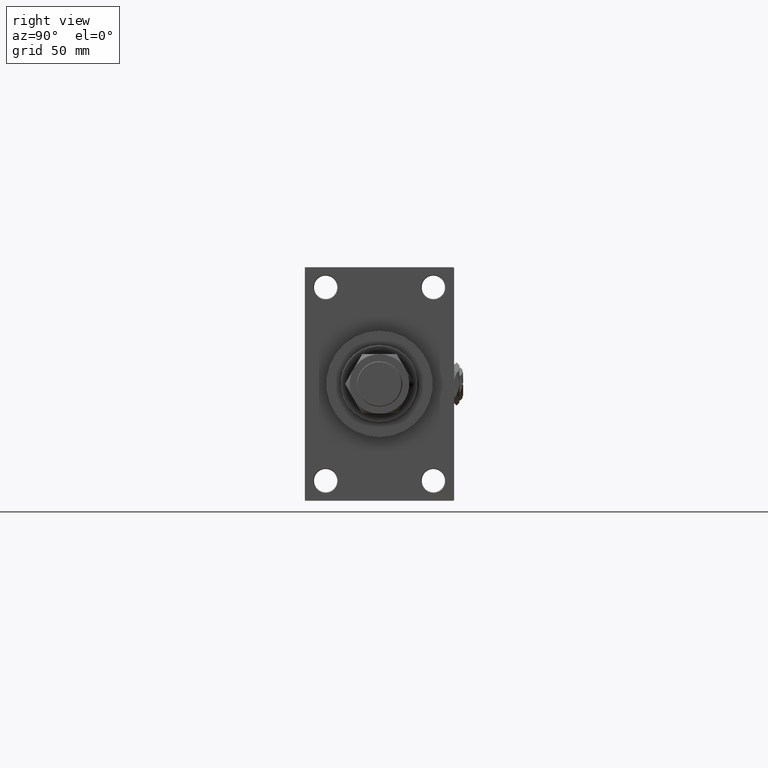
[diagram: clean part render]
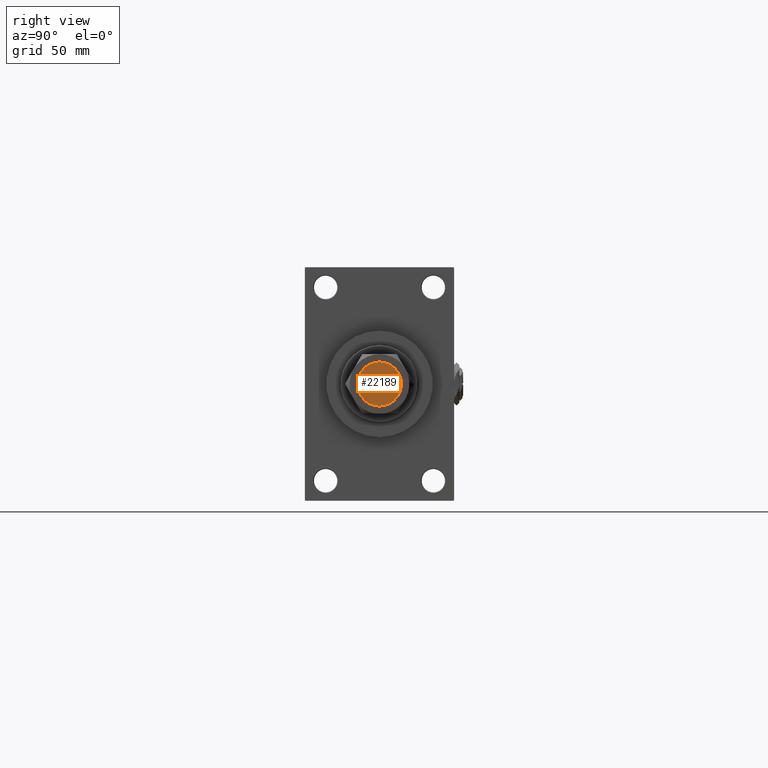
[diagram: same view with one face highlighted and labeled with its STEP entity id]
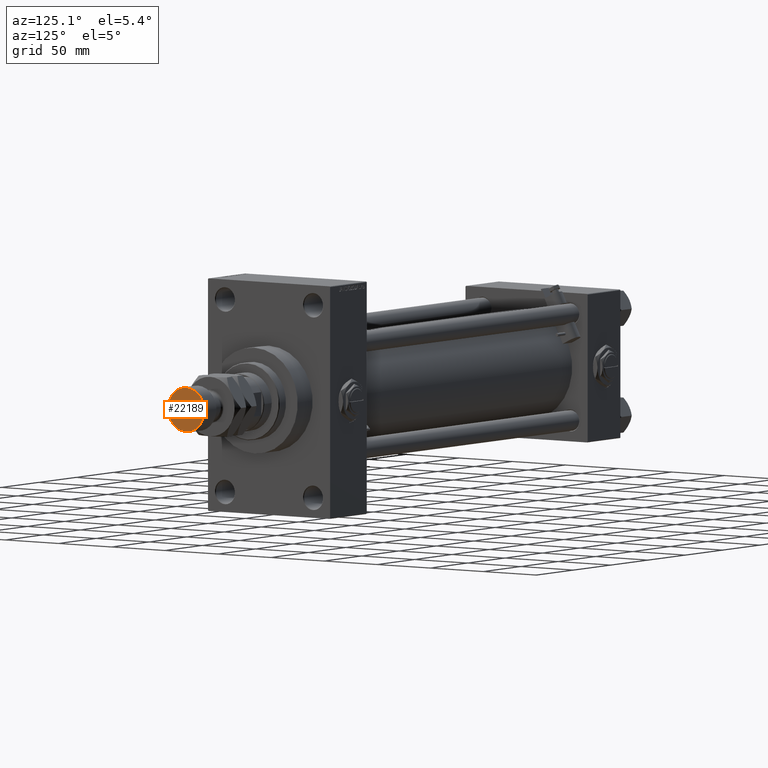
[diagram: same view with one face highlighted and labeled with its STEP entity id]
A machine part, right view. The second image highlights one B-rep face of the part: STEP entity #22189.
A second angle (auxiliary view) of the same face is appended — the face is thin or edge-on in the first view.
In plain terms, the highlighted planar face has unit normal (1, 0, 0).
Its self-contained STEP definition (entity closure, byte-faithful):
#544 = AXIS2_PLACEMENT_3D ( 'NONE', #52142, #11210, #15732 ) ;
#677 = VERTEX_POINT ( 'NONE', #16202 ) ;
#3960 = CIRCLE ( 'NONE', #544, 16.99999999999998579 ) ;
#4166 = DIRECTION ( 'NONE',  ( 0.000000000000000000, 0.000000000000000000, 1.000000000000000000 ) ) ;
#5640 = CARTESIAN_POINT ( 'NONE',  ( 16.99999999999998579, 2.112515728529183672E-15, 60.00000000000000000 ) ) ;
#8690 = PLANE ( 'NONE',  #17896 ) ;
#10582 = DIRECTION ( 'NONE',  ( 0.000000000000000000, 0.000000000000000000, 1.000000000000000000 ) ) ;
#11210 = DIRECTION ( 'NONE',  ( 0.000000000000000000, 0.000000000000000000, 1.000000000000000000 ) ) ;
#12760 = AXIS2_PLACEMENT_3D ( 'NONE', #41988, #10582, #51516 ) ;
#15732 = DIRECTION ( 'NONE',  ( 1.000000000000000000, 0.000000000000000000, 0.000000000000000000 ) ) ;
#16202 = CARTESIAN_POINT ( 'NONE',  ( -16.99999999999998579, 0.000000000000000000, 60.00000000000000000 ) ) ;
#17896 = AXIS2_PLACEMENT_3D ( 'NONE', #19892, #4166, #36099 ) ;
#19892 = CARTESIAN_POINT ( 'NONE',  ( 0.000000000000000000, 0.000000000000000000, 60.00000000000000000 ) ) ;
#21971 = EDGE_CURVE ( 'NONE', #677, #42122, #36528, .T. ) ;
#22189 = ADVANCED_FACE ( 'NONE', ( #24924 ), #8690, .T. ) ;
#24924 = FACE_OUTER_BOUND ( 'NONE', #26380, .T. ) ;
#26380 = EDGE_LOOP ( 'NONE', ( #29714, #41638 ) ) ;
#29714 = ORIENTED_EDGE ( 'NONE', *, *, #21971, .T. ) ;
#36099 = DIRECTION ( 'NONE',  ( 1.000000000000000000, 0.000000000000000000, -0.000000000000000000 ) ) ;
#36528 = CIRCLE ( 'NONE', #12760, 16.99999999999998579 ) ;
#41638 = ORIENTED_EDGE ( 'NONE', *, *, #42196, .T. ) ;
#41988 = CARTESIAN_POINT ( 'NONE',  ( 0.000000000000000000, 0.000000000000000000, 60.00000000000000000 ) ) ;
#42122 = VERTEX_POINT ( 'NONE', #5640 ) ;
#42196 = EDGE_CURVE ( 'NONE', #42122, #677, #3960, .T. ) ;
#51516 = DIRECTION ( 'NONE',  ( 1.000000000000000000, 0.000000000000000000, 0.000000000000000000 ) ) ;
#52142 = CARTESIAN_POINT ( 'NONE',  ( 0.000000000000000000, 0.000000000000000000, 60.00000000000000000 ) ) ;